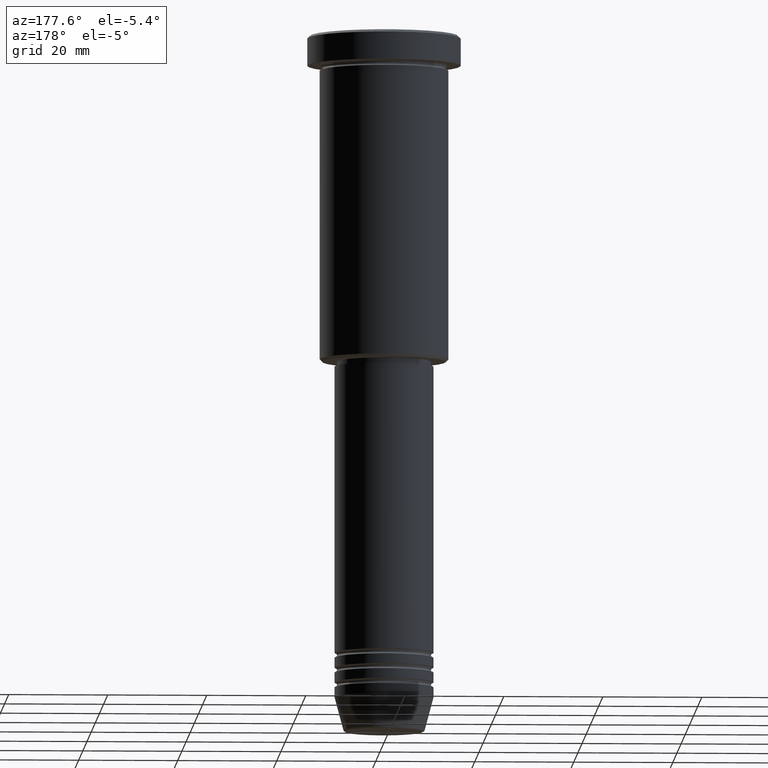
[diagram: clean part render]
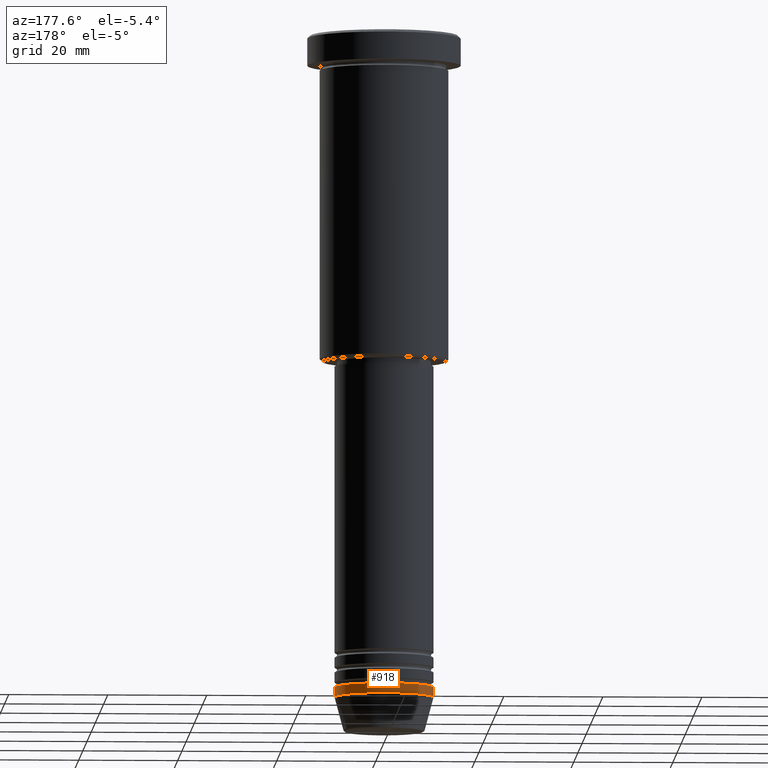
[diagram: same view with one face highlighted and labeled with its STEP entity id]
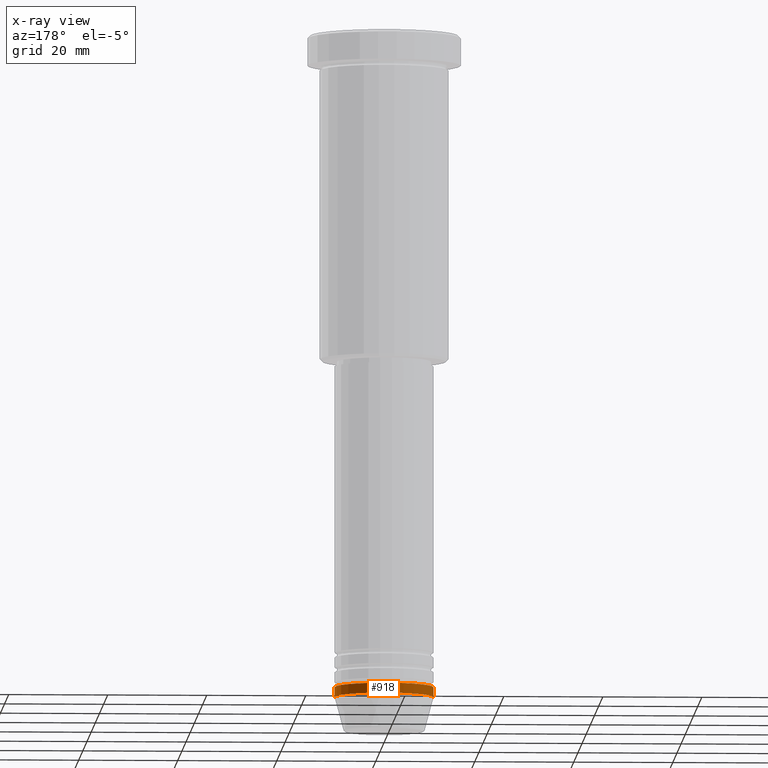
[diagram: x-ray of the same camera — body ghosted, the highlighted face saturated]
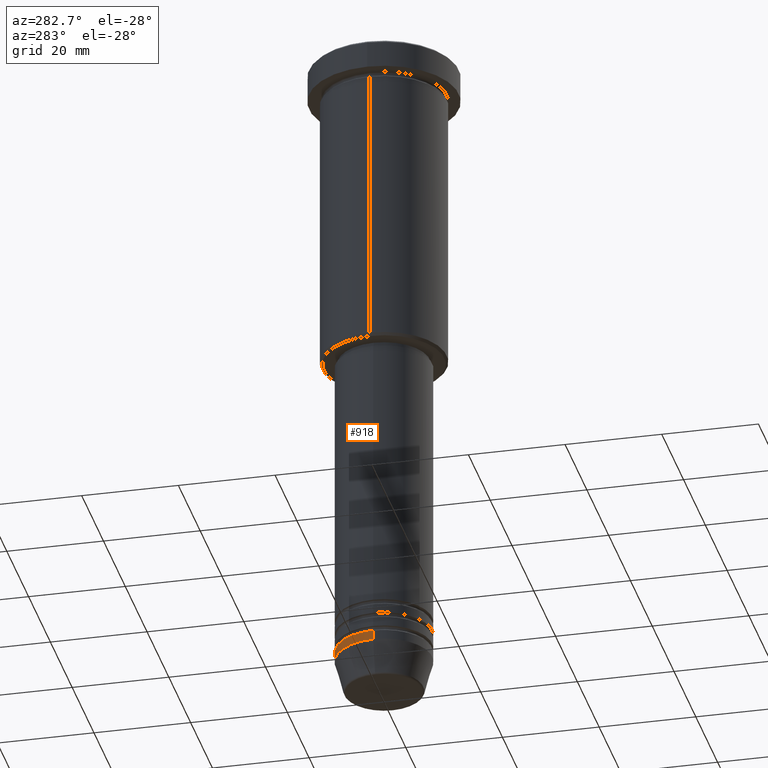
[diagram: same view with one face highlighted and labeled with its STEP entity id]
A machine part, auxiliary view. The second image highlights one B-rep face of the part: STEP entity #918.
The next image is the same camera in x-ray: the body ghosted, the highlighted face saturated — about 0% of this face is hidden behind the body in this view.
A second angle (auxiliary view) of the same face is appended — the face is thin or edge-on in the first view.
In plain terms, the highlighted cylindrical surface (partial cylindrical patch) has radius 10 mm, axis along (-0, -0, 1).
Its self-contained STEP definition (entity closure, byte-faithful):
#15 = DIRECTION ( 'NONE',  ( -0.000000000000000000, -0.000000000000000000, 1.000000000000000000 ) ) ;
#19 = EDGE_CURVE ( 'NONE', #829, #728, #932, .T. ) ;
#59 = AXIS2_PLACEMENT_3D ( 'NONE', #148, #66, #704 ) ;
#66 = DIRECTION ( 'NONE',  ( -0.000000000000000000, -0.000000000000000000, 1.000000000000000000 ) ) ;
#78 = CIRCLE ( 'NONE', #59, 10.00000000000000000 ) ;
#85 = EDGE_LOOP ( 'NONE', ( #280, #624, #814, #508 ) ) ;
#115 = CARTESIAN_POINT ( 'NONE',  ( -10.00000000000000000, 1.224646799147353256E-15, 0.000000000000000000 ) ) ;
#148 = CARTESIAN_POINT ( 'NONE',  ( 0.000000000000000000, 0.000000000000000000, -134.0000000000000000 ) ) ;
#207 = DIRECTION ( 'NONE',  ( 1.000000000000000000, 0.000000000000000000, 0.000000000000000000 ) ) ;
#212 = DIRECTION ( 'NONE',  ( 1.000000000000000000, 0.000000000000000000, 0.000000000000000000 ) ) ;
#231 = CYLINDRICAL_SURFACE ( 'NONE', #489, 10.00000000000000000 ) ;
#254 = AXIS2_PLACEMENT_3D ( 'NONE', #947, #302, #212 ) ;
#262 = CARTESIAN_POINT ( 'NONE',  ( -10.00000000000000000, 1.224646799147353256E-15, -134.0000000000000000 ) ) ;
#280 = ORIENTED_EDGE ( 'NONE', *, *, #815, .T. ) ;
#302 = DIRECTION ( 'NONE',  ( -0.000000000000000000, -0.000000000000000000, 1.000000000000000000 ) ) ;
#363 = LINE ( 'NONE', #816, #779 ) ;
#364 = EDGE_CURVE ( 'NONE', #1092, #728, #944, .T. ) ;
#457 = VERTEX_POINT ( 'NONE', #594 ) ;
#489 = AXIS2_PLACEMENT_3D ( 'NONE', #596, #1023, #207 ) ;
#508 = ORIENTED_EDGE ( 'NONE', *, *, #1026, .F. ) ;
#533 = CARTESIAN_POINT ( 'NONE',  ( 10.00000000000000000, 0.000000000000000000, -132.0000000000000000 ) ) ;
#550 = CARTESIAN_POINT ( 'NONE',  ( -10.00000000000000000, 1.224646799147353256E-15, -132.0000000000000000 ) ) ;
#594 = CARTESIAN_POINT ( 'NONE',  ( 10.00000000000000000, 0.000000000000000000, -134.0000000000000000 ) ) ;
#596 = CARTESIAN_POINT ( 'NONE',  ( 0.000000000000000000, 0.000000000000000000, 0.000000000000000000 ) ) ;
#624 = ORIENTED_EDGE ( 'NONE', *, *, #19, .T. ) ;
#647 = DIRECTION ( 'NONE',  ( -0.000000000000000000, -0.000000000000000000, 1.000000000000000000 ) ) ;
#704 = DIRECTION ( 'NONE',  ( 1.000000000000000000, 0.000000000000000000, 0.000000000000000000 ) ) ;
#728 = VERTEX_POINT ( 'NONE', #550 ) ;
#766 = FACE_OUTER_BOUND ( 'NONE', #85, .T. ) ;
#779 = VECTOR ( 'NONE', #647, 1000.000000000000000 ) ;
#814 = ORIENTED_EDGE ( 'NONE', *, *, #364, .F. ) ;
#815 = EDGE_CURVE ( 'NONE', #457, #829, #78, .T. ) ;
#816 = CARTESIAN_POINT ( 'NONE',  ( 10.00000000000000000, 0.000000000000000000, 0.000000000000000000 ) ) ;
#829 = VERTEX_POINT ( 'NONE', #262 ) ;
#918 = ADVANCED_FACE ( 'NONE', ( #766 ), #231, .T. ) ;
#932 = LINE ( 'NONE', #115, #1055 ) ;
#944 = CIRCLE ( 'NONE', #254, 10.00000000000000000 ) ;
#947 = CARTESIAN_POINT ( 'NONE',  ( 0.000000000000000000, 0.000000000000000000, -132.0000000000000000 ) ) ;
#1023 = DIRECTION ( 'NONE',  ( -0.000000000000000000, -0.000000000000000000, 1.000000000000000000 ) ) ;
#1026 = EDGE_CURVE ( 'NONE', #457, #1092, #363, .T. ) ;
#1055 = VECTOR ( 'NONE', #15, 1000.000000000000000 ) ;
#1092 = VERTEX_POINT ( 'NONE', #533 ) ;